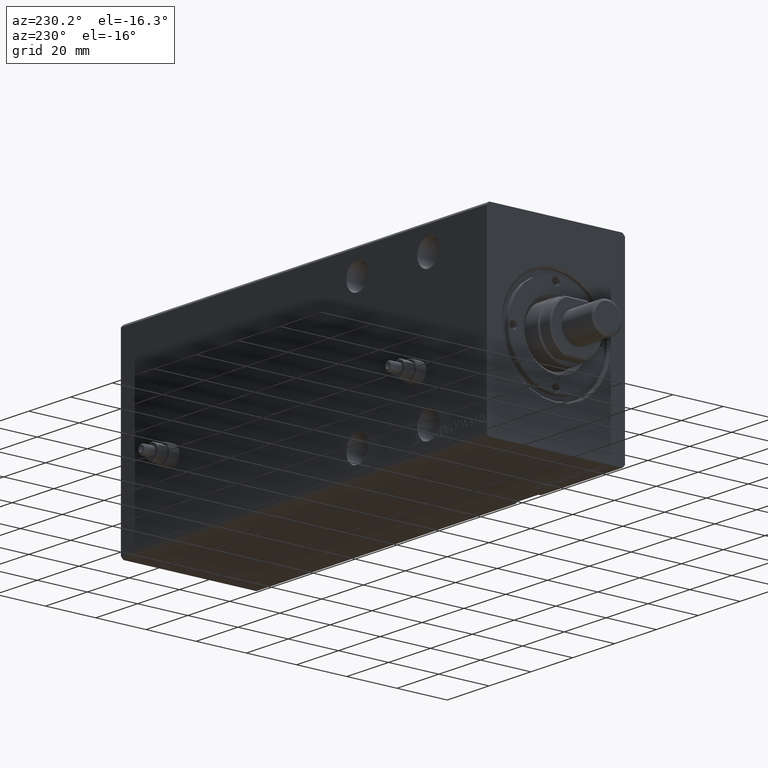
[diagram: clean part render]
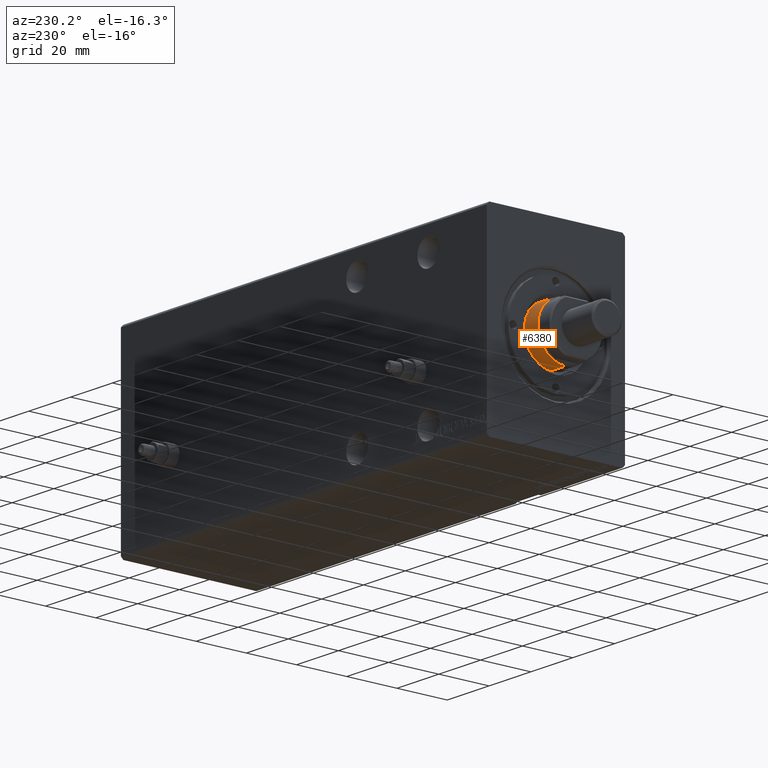
[diagram: same view with one face highlighted and labeled with its STEP entity id]
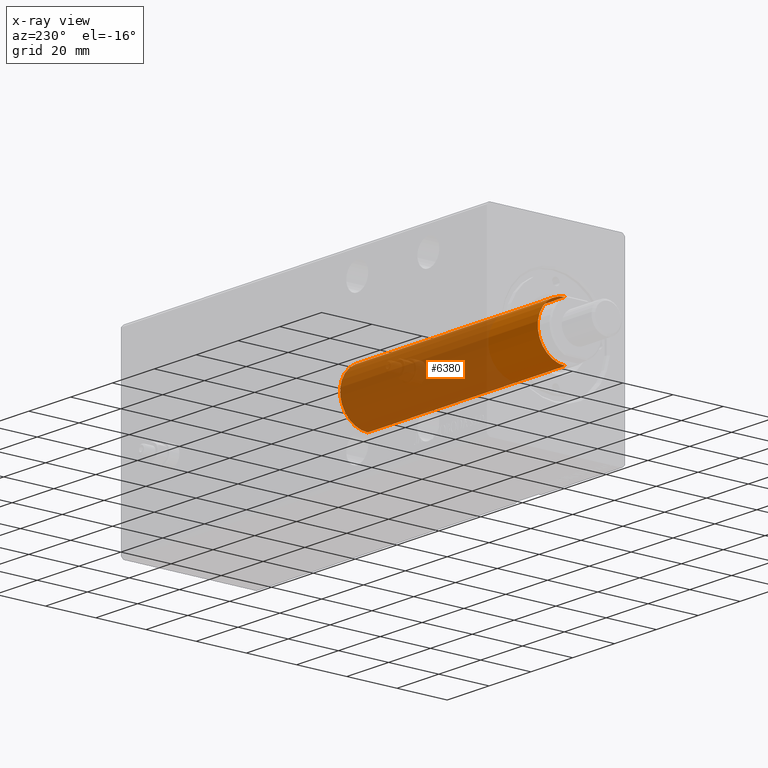
[diagram: x-ray of the same camera — body ghosted, the highlighted face saturated]
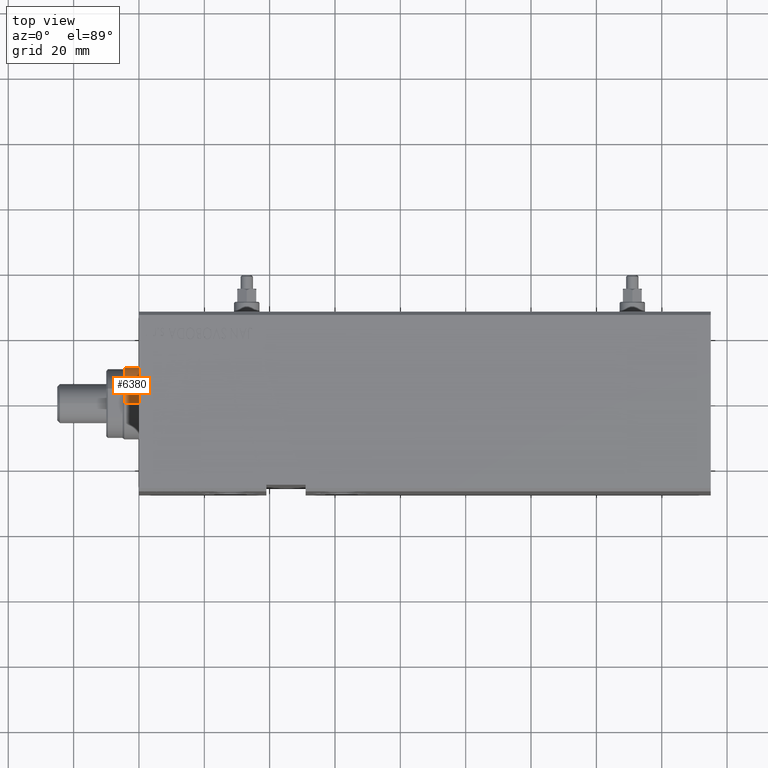
[diagram: same view with one face highlighted and labeled with its STEP entity id]
A machine part, auxiliary view. The second image highlights one B-rep face of the part: STEP entity #6380.
The next image is the same camera in x-ray: the body ghosted, the highlighted face saturated — about 75% of this face is hidden behind the body in this view.
A second angle (top view) of the same face is appended — the face is thin or edge-on in the first view.
In plain terms, the highlighted cylindrical surface (edge-blend (fillet) strip) has radius 11 mm, axis along (1, -0, -0).
Its self-contained STEP definition (entity closure, byte-faithful):
#1333 = AXIS2_PLACEMENT_3D ( 'NONE', #35746, #2109, #27743 ) ;
#2109 = DIRECTION ( 'NONE',  ( -0.000000000000000000, -0.000000000000000000, -1.000000000000000000 ) ) ;
#3673 = DIRECTION ( 'NONE',  ( -0.000000000000000000, -0.000000000000000000, -1.000000000000000000 ) ) ;
#4090 = CARTESIAN_POINT ( 'NONE',  ( -11.00000000000000000, 0.000000000000000000, 166.2000000000000171 ) ) ;
#4312 = EDGE_CURVE ( 'NONE', #29658, #26289, #10170, .T. ) ;
#5780 = FACE_OUTER_BOUND ( 'NONE', #17398, .T. ) ;
#6060 = CARTESIAN_POINT ( 'NONE',  ( -11.00000000000000000, 0.000000000000000000, 165.7000000000000455 ) ) ;
#6380 = ADVANCED_FACE ( 'NONE', ( #5780 ), #29061, .T. ) ;
#7238 = DIRECTION ( 'NONE',  ( -0.000000000000000000, -0.000000000000000000, -1.000000000000000000 ) ) ;
#9551 = EDGE_CURVE ( 'NONE', #14545, #26289, #40630, .T. ) ;
#10170 = LINE ( 'NONE', #4090, #41005 ) ;
#10339 = DIRECTION ( 'NONE',  ( 0.000000000000000000, 0.000000000000000000, -1.000000000000000000 ) ) ;
#10556 = CARTESIAN_POINT ( 'NONE',  ( 11.00000000000000000, 1.347111479062088405E-15, 71.20000000000000284 ) ) ;
#10717 = EDGE_CURVE ( 'NONE', #40214, #14545, #36792, .T. ) ;
#13525 = EDGE_CURVE ( 'NONE', #29658, #40214, #22874, .T. ) ;
#13702 = CARTESIAN_POINT ( 'NONE',  ( 11.00000000000000000, 1.347111479062088405E-15, 166.2000000000000171 ) ) ;
#14198 = DIRECTION ( 'NONE',  ( 1.000000000000000000, 0.000000000000000000, 0.000000000000000000 ) ) ;
#14545 = VERTEX_POINT ( 'NONE', #10556 ) ;
#15992 = AXIS2_PLACEMENT_3D ( 'NONE', #30378, #10339, #14198 ) ;
#17398 = EDGE_LOOP ( 'NONE', ( #33752, #18729, #34192, #30117 ) ) ;
#18319 = DIRECTION ( 'NONE',  ( 1.000000000000000000, 0.000000000000000000, 0.000000000000000000 ) ) ;
#18729 = ORIENTED_EDGE ( 'NONE', *, *, #10717, .T. ) ;
#18963 = CARTESIAN_POINT ( 'NONE',  ( 0.000000000000000000, 0.000000000000000000, 71.20000000000000284 ) ) ;
#21677 = CARTESIAN_POINT ( 'NONE',  ( 11.00000000000000000, 1.347111479062088405E-15, 165.7000000000000455 ) ) ;
#22077 = AXIS2_PLACEMENT_3D ( 'NONE', #18963, #35135, #18319 ) ;
#22874 = CIRCLE ( 'NONE', #15992, 11.00000000000000000 ) ;
#26289 = VERTEX_POINT ( 'NONE', #40558 ) ;
#27743 = DIRECTION ( 'NONE',  ( -1.000000000000000000, 0.000000000000000000, 0.000000000000000000 ) ) ;
#29061 = CYLINDRICAL_SURFACE ( 'NONE', #1333, 11.00000000000000000 ) ;
#29658 = VERTEX_POINT ( 'NONE', #6060 ) ;
#30117 = ORIENTED_EDGE ( 'NONE', *, *, #4312, .F. ) ;
#30378 = CARTESIAN_POINT ( 'NONE',  ( 0.000000000000000000, 0.000000000000000000, 165.7000000000000455 ) ) ;
#33752 = ORIENTED_EDGE ( 'NONE', *, *, #13525, .T. ) ;
#34192 = ORIENTED_EDGE ( 'NONE', *, *, #9551, .T. ) ;
#35135 = DIRECTION ( 'NONE',  ( 0.000000000000000000, 0.000000000000000000, 1.000000000000000000 ) ) ;
#35746 = CARTESIAN_POINT ( 'NONE',  ( 0.000000000000000000, 0.000000000000000000, 166.2000000000000171 ) ) ;
#36792 = LINE ( 'NONE', #13702, #39285 ) ;
#39285 = VECTOR ( 'NONE', #7238, 1000.000000000000000 ) ;
#40214 = VERTEX_POINT ( 'NONE', #21677 ) ;
#40558 = CARTESIAN_POINT ( 'NONE',  ( -11.00000000000000000, 0.000000000000000000, 71.20000000000000284 ) ) ;
#40630 = CIRCLE ( 'NONE', #22077, 11.00000000000000000 ) ;
#41005 = VECTOR ( 'NONE', #3673, 1000.000000000000000 ) ;